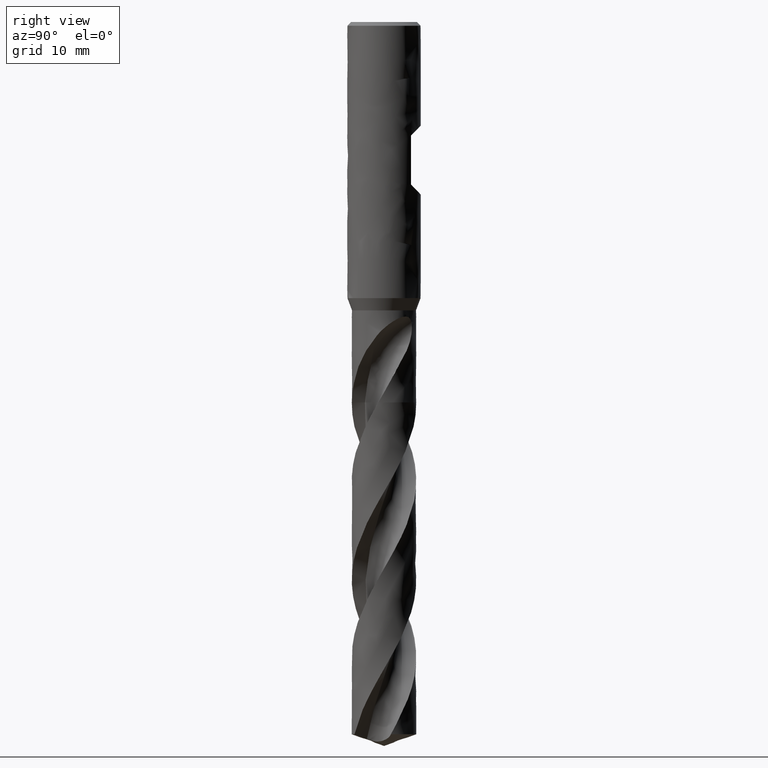
[diagram: clean part render]
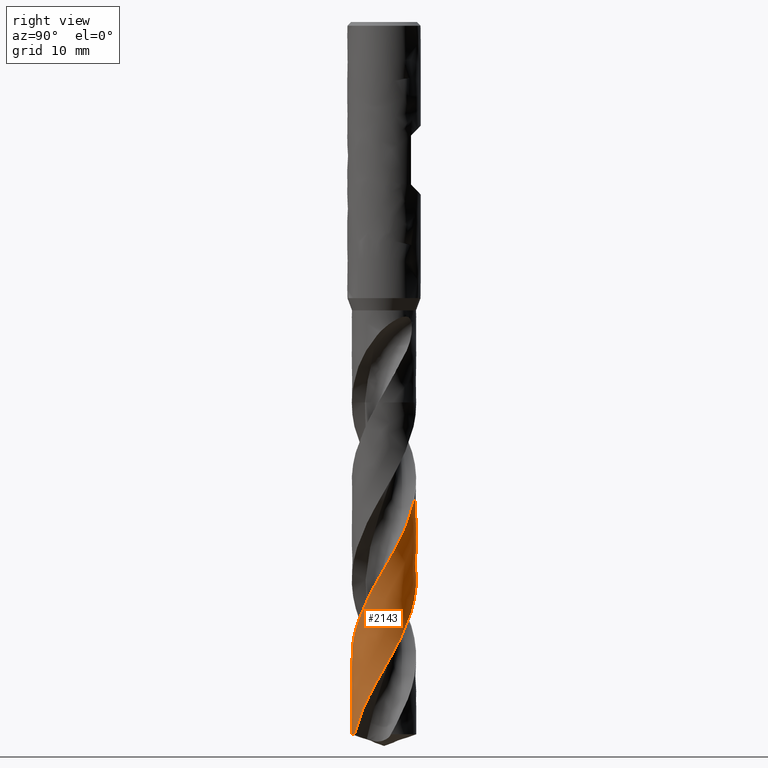
[diagram: same view with one face highlighted and labeled with its STEP entity id]
A machine part, right view. The second image highlights one B-rep face of the part: STEP entity #2143.
In plain terms, the highlighted face is a freeform B-spline surface patch.
Its self-contained STEP definition (entity closure, byte-faithful):
#1851 = EDGE_CURVE('', #1852, #1854, #1856, .T.);
#1852 = VERTEX_POINT('', #1853);
#1853 = CARTESIAN_POINT('', (-5.25, 4.11787486213298E-15, -62.));
#1854 = VERTEX_POINT('', #1855);
#1855 = CARTESIAN_POINT('', (-5.16869283402966, 0.920388172159186, -62.));
#1856 = CIRCLE('', #1857, 5.25);
#1857 = AXIS2_PLACEMENT_3D('', #1858, #1859, #1860);
#1858 = CARTESIAN_POINT('', (2.32462766312588E-31, 3.7964050773568E-15, -62.));
#1859 = DIRECTION('', (3.74939945665464E-33, 6.12323399573677E-17, -1.));
#1860 = DIRECTION('', (-1., 6.12323399573677E-17, 0.));
#2047 = EDGE_CURVE('', #1852, #2048, #2050, .T.);
#2048 = VERTEX_POINT('', #2049);
#2049 = CARTESIAN_POINT('', (-5.25, 5.01069194427912E-15, -76.5808094671502));
#2050 = LINE('', #2051, #2052);
#2051 = CARTESIAN_POINT('', (-5.25, 4.11787486213298E-15, -62.));
#2052 = VECTOR('', #2053, 14.5808094671502);
#2053 = DIRECTION('', (0., 8.92817082146143E-16, -14.5808094671502));
#2143 = ADVANCED_FACE('', (#2144), #2539, .T.);
#2144 = FACE_OUTER_BOUND('', #2145, .T.);
#2145 = EDGE_LOOP('', (#2146, #2147, #2171, #2360, #2372, #2381, #2538));
#2146 = ORIENTED_EDGE('', *, *, #1851, .T.);
#2147 = ORIENTED_EDGE('', *, *, #2148, .F.);
#2148 = EDGE_CURVE('', #2149, #1854, #2151, .T.);
#2149 = VERTEX_POINT('', #2150);
#2150 = CARTESIAN_POINT('', (-4.2160817945425, 3.12844279182588, -66.2069655611149));
#2151 = B_SPLINE_CURVE_WITH_KNOTS('', 3, (#2152, #2153, #2154, #2155, #2156, #2157, #2158, #2159, #2160, #2161, #2162, #2163, #2164, #2165, #2166, #2167, #2168, #2169, #2170), .UNSPECIFIED., .F., .U., (4, 3, 3, 3, 3, 3, 4), (0., 0.996962139515723, 1.99364170083914, 2.99004708487693, 3.98615731582775, 4.28158842762479, 4.85609640100197), .UNSPECIFIED.);
#2152 = CARTESIAN_POINT('', (-4.21608179454249, 3.12844279182589, -66.2069655611149));
#2153 = CARTESIAN_POINT('', (-4.31498788157669, 2.99515086972207, -65.9190629632584));
#2154 = CARTESIAN_POINT('', (-4.40760196109266, 2.85711449780675, -65.6310878701483));
#2155 = CARTESIAN_POINT('', (-4.49345220451459, 2.71502988671266, -65.3432011643113));
#2156 = CARTESIAN_POINT('', (-4.57927811460868, 2.57298554797291, -65.0553960568637));
#2157 = CARTESIAN_POINT('', (-4.65839128829379, 2.42681640480214, -64.7675174718451));
#2158 = CARTESIAN_POINT('', (-4.73038496939341, 2.27726986572447, -64.4797203151252));
#2159 = CARTESIAN_POINT('', (-4.80235884570036, 2.12776446551004, -64.1920023287287));
#2160 = CARTESIAN_POINT('', (-4.86726117376034, 1.97479523071185, -63.9042077677993));
#2161 = CARTESIAN_POINT('', (-4.92477063174782, 1.81910258772656, -63.6165166027939));
#2162 = CARTESIAN_POINT('', (-4.98226305440579, 1.66345606368536, -63.3289106570544));
#2163 = CARTESIAN_POINT('', (-5.03239520643846, 1.50499822601956, -63.0412474931458));
#2164 = CARTESIAN_POINT('', (-5.07488446156996, 1.34463664300591, -62.7536240848049));
#2165 = CARTESIAN_POINT('', (-5.08748612702113, 1.29707584171383, -62.6683193658444));
#2166 = CARTESIAN_POINT('', (-5.09941763542269, 1.24934360747475, -62.5830084273118));
#2167 = CARTESIAN_POINT('', (-5.110674765344, 1.20145888105921, -62.4976968989545));
#2168 = CARTESIAN_POINT('', (-5.13256586157215, 1.10834019440032, -62.3317964527754));
#2169 = CARTESIAN_POINT('', (-5.15191339942163, 1.01461770057016, -62.1658689678368));
#2170 = CARTESIAN_POINT('', (-5.16869283402966, 0.920388172159186, -62.));
#2171 = ORIENTED_EDGE('', *, *, #2172, .T.);
#2172 = EDGE_CURVE('', #2149, #2173, #2175, .T.);
#2173 = VERTEX_POINT('', #2174);
#2174 = CARTESIAN_POINT('', (-4.84328830628847, -2.02609436655092, -114.411148209227));
#2175 = B_SPLINE_CURVE_WITH_KNOTS('', 3, (#2176, #2177, #2178, #2179, #2180, #2181, #2182, #2183, #2184, #2185, #2186, #2187, #2188, #2189, #2190, #2191, #2192, #2193, #2194, #2195, #2196, #2197, #2198, #2199, #2200, #2201, #2202, #2203, #2204, #2205, #2206, #2207, #2208, #2209, #2210, #2211, #2212, #2213, #2214, #2215, #2216, #2217, #2218, #2219, #2220, #2221, #2222, #2223, #2224, #2225, #2226, #2227, #2228, #2229, #2230, #2231, #2232, #2233, #2234, #2235, #2236, #2237, #2238, #2239, #2240, #2241, #2242, #2243, #2244, #2245, #2246, #2247, #2248, #2249, #2250, #2251, #2252, #2253, #2254, #2255, #2256, #2257, #2258, #2259, #2260, #2261, #2262, #2263, #2264, #2265, #2266, #2267, #2268, #2269, #2270, #2271, #2272, #2273, #2274, #2275, #2276, #2277, #2278, #2279, #2280, #2281, #2282, #2283, #2284, #2285, #2286, #2287, #2288, #2289, #2290, #2291, #2292, #2293, #2294, #2295, #2296, #2297, #2298, #2299, #2300, #2301, #2302, #2303, #2304, #2305, #2306, #2307, #2308, #2309, #2310, #2311, #2312, #2313, #2314, #2315, #2316, #2317, #2318, #2319, #2320, #2321, #2322, #2323, #2324, #2325, #2326, #2327, #2328, #2329, #2330, #2331, #2332, #2333, #2334, #2335, #2336, #2337, #2338, #2339, #2340, #2341, #2342, #2343, #2344, #2345, #2346, #2347, #2348, #2349, #2350, #2351, #2352, #2353, #2354, #2355, #2356, #2357, #2358, #2359), .UNSPECIFIED., .F., .U., (4, 3, 3, 3, 3, 3, 3, 3, 3, 3, 3, 3, 3, 3, 3, 3, 3, 3, 3, 3, 3, 3, 3, 3, 3, 3, 3, 3, 3, 3, 3, 3, 3, 3, 3, 3, 3, 3, 3, 3, 3, 3, 3, 3, 3, 3, 3, 3, 3, 3, 3, 3, 3, 3, 3, 3, 3, 3, 3, 3, 3, 4), (0., 0.997826416070521, 1.99537229100751, 2.99264038705192, 3.98963191990306, 4.98634677811487, 5.9827835936235, 6.97893963658797, 7.97481087490306, 8.97039206098137, 9.63444262651333, 9.76576934265647, 9.85333803387585, 10.8531826874628, 11.8526969012914, 12.851893886791, 13.850784705534, 14.8493785045458, 15.8476827469499, 16.8457035347478, 17.8434455783771, 18.8409122470991, 19.8381056229899, 20.8350265308819, 21.8316745456524, 22.8280479773665, 23.8241438342878, 24.8199577912903, 25.8154842414145, 26.2584016873673, 26.3897286406995, 27.389562113575, 28.3890709331698, 29.3882664865803, 30.3871597176696, 31.3857598368594, 32.3840744096357, 33.3821094964198, 34.3798697618103, 35.3773585545626, 36.3745779617646, 37.371528839556, 38.3682108222731, 39.3646223345982, 40.3607606307431, 41.3566217007286, 42.3522001841751, 43.0162519629284, 43.074638212273, 44.0744329911501, 45.0739069317469, 46.0730727259813, 47.0719411035937, 48.07052102078, 49.0688198351982, 50.0668434448146, 51.0645963924434, 52.0620819464989, 53.0593021437864, 54.0562578422224, 55.0529486841756, 55.5193598382683), .UNSPECIFIED.);
#2176 = CARTESIAN_POINT('', (-4.2160817945425, 3.12844279182588, -66.2069655611149));
#2177 = CARTESIAN_POINT('', (-4.11708996482183, 3.26185026604413, -66.4951177446432));
#2178 = CARTESIAN_POINT('', (-4.01174220257427, 3.39057651159989, -66.7833613213697));
#2179 = CARTESIAN_POINT('', (-3.900576118705, 3.51397295695175, -67.0715349434668));
#2180 = CARTESIAN_POINT('', (-3.78944128942939, 3.63733470911641, -67.3596275449042));
#2181 = CARTESIAN_POINT('', (-3.67242937839169, 3.75543857241008, -67.6478118540161));
#2182 = CARTESIAN_POINT('', (-3.55013575166505, 3.86769131973451, -67.935926429764));
#2183 = CARTESIAN_POINT('', (-3.42787617909978, 3.97991280890367, -68.223960776472));
#2184 = CARTESIAN_POINT('', (-3.30027006904479, 4.08634873122968, -68.5120870680024));
#2185 = CARTESIAN_POINT('', (-3.1679640903861, 4.18646671096573, -68.800143258256));
#2186 = CARTESIAN_POINT('', (-3.0356948029282, 4.28655692590284, -69.0881195645344));
#2187 = CARTESIAN_POINT('', (-2.89865595550054, 4.3803874565236, -69.3761878510616));
#2188 = CARTESIAN_POINT('', (-2.75754018003997, 4.46749058817869, -69.6641860296679));
#2189 = CARTESIAN_POINT('', (-2.61646356555017, 4.55456954788574, -69.9521042860387));
#2190 = CARTESIAN_POINT('', (-2.47123557740283, 4.63497221739177, -70.2401144488013));
#2191 = CARTESIAN_POINT('', (-2.32258873070124, 4.7082992245629, -70.5280546226502));
#2192 = CARTESIAN_POINT('', (-2.17398335039371, 4.7816057764964, -70.8159144729605));
#2193 = CARTESIAN_POINT('', (-2.02187999020734, 4.8478805743273, -71.103865865482));
#2194 = CARTESIAN_POINT('', (-1.8670452696576, 4.90679548799919, -71.3917476907034));
#2195 = CARTESIAN_POINT('', (-1.71225417790374, 4.96569380082903, -71.6795483975726));
#2196 = CARTESIAN_POINT('', (-1.55464773639376, 5.01726888298646, -71.9674400297184));
#2197 = CARTESIAN_POINT('', (-1.3950205281438, 5.0612664152421, -72.2552627386152));
#2198 = CARTESIAN_POINT('', (-1.23543895789543, 5.10525136844264, -72.5430031579488));
#2199 = CARTESIAN_POINT('', (-1.07374813054914, 5.14168778997745, -72.8308339146304));
#2200 = CARTESIAN_POINT('', (-0.910763075180295, 5.17039753025708, -73.1185961865298));
#2201 = CARTESIAN_POINT('', (-0.74782548998435, 5.19909890868825, -73.4062746462983));
#2202 = CARTESIAN_POINT('', (-0.583502411125033, 5.22009433427144, -73.6940432396484));
#2203 = CARTESIAN_POINT('', (-0.418620734896973, 5.23328354671473, -73.9817434299985));
#2204 = CARTESIAN_POINT('', (-0.308645002253418, 5.24208072378513, -74.1736388542764));
#2205 = CARTESIAN_POINT('', (-0.198386641813671, 5.24740994781605, -74.3655627607601));
#2206 = CARTESIAN_POINT('', (-0.0880916096951311, 5.24926088781091, -74.5574676483081));
#2207 = CARTESIAN_POINT('', (-0.0662789870924732, 5.24962694106637, -74.5954199368861));
#2208 = CARTESIAN_POINT('', (-0.0444643105177051, 5.24985702855171, -74.633372599933));
#2209 = CARTESIAN_POINT('', (-0.022649492477796, 5.24995114267652, -74.6713252752606));
#2210 = CARTESIAN_POINT('', (-0.00810336568009593, 5.25001389800139, -74.6966321298316));
#2211 = CARTESIAN_POINT('', (0.00644290206478426, 5.25001619749243, -74.7219391255088));
#2212 = CARTESIAN_POINT('', (0.0209887447066012, 5.24995804484147, -74.7472461544025));
#2213 = CARTESIAN_POINT('', (0.187070740392739, 5.24929406761003, -75.0361975728287));
#2214 = CARTESIAN_POINT('', (0.353147656369036, 5.24074019356305, -75.3252409934681));
#2215 = CARTESIAN_POINT('', (0.518381553905356, 5.22434498904606, -75.61421425995));
#2216 = CARTESIAN_POINT('', (0.683560843109312, 5.20795520299823, -75.9030920233394));
#2217 = CARTESIAN_POINT('', (0.847987776535183, 5.18372037435169, -76.192061884513));
#2218 = CARTESIAN_POINT('', (1.01083503098467, 5.15176790433481, -76.4809615145362));
#2219 = CARTESIAN_POINT('', (1.17363060056393, 5.11982557547303, -76.7697694528701));
#2220 = CARTESIAN_POINT('', (1.33493566421366, 5.08015322852734, -77.0586694087725));
#2221 = CARTESIAN_POINT('', (1.49394020017261, 5.0329556602766, -77.3474992586635));
#2222 = CARTESIAN_POINT('', (1.65289601510481, 4.98577255396539, -77.6362406073885));
#2223 = CARTESIAN_POINT('', (1.80963895416207, 4.93104323231619, -77.9250736363366));
#2224 = CARTESIAN_POINT('', (1.96338257272932, 4.86904804588162, -78.2138369645039));
#2225 = CARTESIAN_POINT('', (2.11708047570141, 4.80707129368758, -78.5025144290267));
#2226 = CARTESIAN_POINT('', (2.26786530078395, 4.73779890039162, -78.7912829470862));
#2227 = CARTESIAN_POINT('', (2.41498026480323, 4.661584528957, -79.0799824425176));
#2228 = CARTESIAN_POINT('', (2.56205257072673, 4.5853922569735, -79.3685982253857));
#2229 = CARTESIAN_POINT('', (2.7055394653251, 4.50221935139632, -79.6573044117113));
#2230 = CARTESIAN_POINT('', (2.84472078987056, 4.4124895045403, -79.9459420895726));
#2231 = CARTESIAN_POINT('', (2.98386259581453, 4.32278513522642, -80.2344978127794));
#2232 = CARTESIAN_POINT('', (3.11877981046854, 4.22647693079333, -80.5231436713739));
#2233 = CARTESIAN_POINT('', (3.2487963910487, 4.12405407451321, -80.8117211630749));
#2234 = CARTESIAN_POINT('', (3.37877665839358, 4.02165982462515, -81.1002180559607));
#2235 = CARTESIAN_POINT('', (3.50393207792608, 3.91309684682083, -81.3888051244838));
#2236 = CARTESIAN_POINT('', (3.62363736794946, 3.79891461151739, -81.6773237030806));
#2237 = CARTESIAN_POINT('', (3.74330961954038, 3.68476389029381, -81.9657626510981));
#2238 = CARTESIAN_POINT('', (3.85760117226234, 3.56493373636408, -82.2542919828146));
#2239 = CARTESIAN_POINT('', (3.96594315979828, 3.44002832157662, -82.5427525742022));
#2240 = CARTESIAN_POINT('', (4.07425546304556, 3.31515712924042, -82.8311341311577));
#2241 = CARTESIAN_POINT('', (4.17668063104702, 3.18514533347758, -83.1196063178347));
#2242 = CARTESIAN_POINT('', (4.272710952783, 3.05064601584127, -83.4080095129712));
#2243 = CARTESIAN_POINT('', (4.36871503568685, 2.91618344810804, -83.6963339062991));
#2244 = CARTESIAN_POINT('', (4.45837944643586, 2.77716351391643, -83.9847490941912));
#2245 = CARTESIAN_POINT('', (4.54126155491158, 2.63428234817039, -84.2730951543572));
#2246 = CARTESIAN_POINT('', (4.62412097557213, 2.49144029414025, -84.5613622838319));
#2247 = CARTESIAN_POINT('', (4.70024600395417, 2.34466298474578, -84.849720183142));
#2248 = CARTESIAN_POINT('', (4.76926231741443, 2.19468379218756, -85.1380090386381));
#2249 = CARTESIAN_POINT('', (4.83825961642826, 2.04474591987929, -85.4262184686662));
#2250 = CARTESIAN_POINT('', (4.90018893545533, 1.89152790518994, -85.7145183566269));
#2251 = CARTESIAN_POINT('', (4.95474690909239, 1.73579464996281, -86.0027495990515));
#2252 = CARTESIAN_POINT('', (5.00928968369086, 1.58010477970027, -86.2909005445464));
#2253 = CARTESIAN_POINT('', (5.05649469650844, 1.42181680224163, -86.5791412979194));
#2254 = CARTESIAN_POINT('', (5.09613177813141, 1.26172140344823, -86.8673141321673));
#2255 = CARTESIAN_POINT('', (5.13575764226962, 1.10167131242277, -87.1554054121169));
#2256 = CARTESIAN_POINT('', (5.16784172529851, 0.939726347781722, -87.4435857901692));
#2257 = CARTESIAN_POINT('', (5.19222915850842, 0.776695799869749, -87.7316988233314));
#2258 = CARTESIAN_POINT('', (5.21660955068949, 0.613712321396365, -88.0197286738086));
#2259 = CARTESIAN_POINT('', (5.23331135756969, 0.449552887219029, -88.307847323437));
#2260 = CARTESIAN_POINT('', (5.24225657795836, 0.285036788596156, -88.5958987925709));
#2261 = CARTESIAN_POINT('', (5.24623637595121, 0.211842299176946, -88.7240551273382));
#2262 = CARTESIAN_POINT('', (5.24868289645099, 0.13856430471541, -88.8522205733626));
#2263 = CARTESIAN_POINT('', (5.24959419660672, 0.0652745812172884, -88.9803810359709));
#2264 = CARTESIAN_POINT('', (5.2498644010751, 0.0435438587417685, -89.0183811717655));
#2265 = CARTESIAN_POINT('', (5.24999966860374, 0.0218116705636013, -89.056381668433));
#2266 = CARTESIAN_POINT('', (5.24999999939181, 7.99124180517558E-5, -89.0943821726134));
#2267 = CARTESIAN_POINT('', (5.25000251778557, -0.16537080936484, -89.38369198375));
#2268 = CARTESIAN_POINT('', (5.24217529757717, -0.330846529524701, -89.6730930248121));
#2269 = CARTESIAN_POINT('', (5.22656286652666, -0.495520536652695, -89.9624247229335));
#2270 = CARTESIAN_POINT('', (5.21095550494732, -0.660141072919653, -90.251662472925));
#2271 = CARTESIAN_POINT('', (5.18755960491977, -0.824048626088918, -90.540990996832));
#2272 = CARTESIAN_POINT('', (5.15649751435526, -0.986424545744888, -90.8302507312612));
#2273 = CARTESIAN_POINT('', (5.12544515927522, -1.14874957351902, -91.1194198058668));
#2274 = CARTESIAN_POINT('', (5.08671442641611, -1.30963249845483, -91.4086789087569));
#2275 = CARTESIAN_POINT('', (5.04050451453364, -1.46826913029183, -91.6978699877849));
#2276 = CARTESIAN_POINT('', (4.99430858418641, -1.6268577641222, -91.986973567506));
#2277 = CARTESIAN_POINT('', (4.94061225704129, -1.78328974432446, -92.2761665404598));
#2278 = CARTESIAN_POINT('', (4.87968964888129, -1.9367831397969, -92.565291966408));
#2279 = CARTESIAN_POINT('', (4.8187849176483, -2.09023149467914, -92.8543325523552));
#2280 = CARTESIAN_POINT('', (4.75062405729675, -2.24082892888107, -93.1434623439017));
#2281 = CARTESIAN_POINT('', (4.67555304784868, -2.38782405062709, -93.4325246588974));
#2282 = CARTESIAN_POINT('', (4.60050350470838, -2.53477713960243, -93.7215043174766));
#2283 = CARTESIAN_POINT('', (4.5185060954584, -2.67821167795792, -94.0105733004345));
#2284 = CARTESIAN_POINT('', (4.42997484933108, -2.81741421063608, -94.2995746165433));
#2285 = CARTESIAN_POINT('', (4.34146838822026, -2.95657777247376, -94.5884950244677));
#2286 = CARTESIAN_POINT('', (4.24638337193078, -3.09158788498576, -94.8775050346652));
#2287 = CARTESIAN_POINT('', (4.14519753061624, -3.22177550927637, -95.1664470716137));
#2288 = CARTESIAN_POINT('', (4.04403955208358, -3.35192728478288, -95.4553095447729));
#2289 = CARTESIAN_POINT('', (3.93672981944304, -3.477329183019, -95.7442619184634));
#2290 = CARTESIAN_POINT('', (3.82380508134253, -3.59736218636643, -96.0331460324613));
#2291 = CARTESIAN_POINT('', (3.71091106803395, -3.71736253089068, -96.3219515462831));
#2292 = CARTESIAN_POINT('', (3.59234547215081, -3.83206036234479, -96.6108471492141));
#2293 = CARTESIAN_POINT('', (3.46869921469749, -3.94089149279157, -96.8996743532725));
#2294 = CARTESIAN_POINT('', (3.34508634961444, -4.04969323189663, -97.188423555577));
#2295 = CARTESIAN_POINT('', (3.2163308173872, -4.15268846132155, -97.4772628046978));
#2296 = CARTESIAN_POINT('', (3.08307283861474, -4.24937193850997, -97.7660337814424));
#2297 = CARTESIAN_POINT('', (2.94985074330609, -4.34602938094921, -98.0547269984688));
#2298 = CARTESIAN_POINT('', (2.81205856712287, -4.43642928075001, -98.3435098769476));
#2299 = CARTESIAN_POINT('', (2.67038103151095, -4.52012888605474, -98.6322249846041));
#2300 = CARTESIAN_POINT('', (2.52874170880629, -4.60380591611321, -98.9208622207505));
#2301 = CARTESIAN_POINT('', (2.38314322863226, -4.68083103888686, -99.2095883632542));
#2302 = CARTESIAN_POINT('', (2.23430979614357, -4.75082726847197, -99.4982475643953));
#2303 = CARTESIAN_POINT('', (2.08551675270329, -4.8208045031239, -99.7868284318565));
#2304 = CARTESIAN_POINT('', (1.93340882994126, -4.8837950297363, -100.075497460823));
#2305 = CARTESIAN_POINT('', (1.77874296120795, -4.93949121650734, -100.36410013586));
#2306 = CARTESIAN_POINT('', (1.6241195018781, -4.99517213137595, -100.652623676002));
#2307 = CARTESIAN_POINT('', (1.46685379449264, -5.04359358149123, -100.941235119503));
#2308 = CARTESIAN_POINT('', (1.30772726761584, -5.08452056673332, -101.229780336055));
#2309 = CARTESIAN_POINT('', (1.14864502579068, -5.12543616195961, -101.518245250221));
#2310 = CARTESIAN_POINT('', (0.987615371475328, -5.15888405216453, -101.8067981769));
#2311 = CARTESIAN_POINT('', (0.825436095620085, -5.18470396956738, -102.095284687242));
#2312 = CARTESIAN_POINT('', (0.663302839919315, -5.21051656028449, -102.383689336363));
#2313 = CARTESIAN_POINT('', (0.499932753537205, -5.22871956462199, -102.672182307567));
#2314 = CARTESIAN_POINT('', (0.336132246449898, -5.23922848450965, -102.960608520937));
#2315 = CARTESIAN_POINT('', (0.226877155163202, -5.24623794389452, -103.152989074767));
#2316 = CARTESIAN_POINT('', (0.117398914776392, -5.2498285311275, -103.345397908009));
#2317 = CARTESIAN_POINT('', (0.00793620856777967, -5.24999400157691, -103.537788067721));
#2318 = CARTESIAN_POINT('', (-0.00168821691095993, -5.25000855044076, -103.554703826696));
#2319 = CARTESIAN_POINT('', (-0.0113126300522792, -5.24999663350282, -103.571619636156));
#2320 = CARTESIAN_POINT('', (-0.0209368658725634, -5.24995825199103, -103.588535465751));
#2321 = CARTESIAN_POINT('', (-0.185740408347153, -5.2493010144477, -103.878198841972));
#2322 = CARTESIAN_POINT('', (-0.350537128118763, -5.24087507591618, -104.167952166624));
#2323 = CARTESIAN_POINT('', (-0.514509996504061, -5.22472769276039, -104.457637636655));
#2324 = CARTESIAN_POINT('', (-0.678430245317613, -5.20858549136665, -104.747230145421));
#2325 = CARTESIAN_POINT('', (-0.84161511774812, -5.18471808130353, -105.036911781604));
#2326 = CARTESIAN_POINT('', (-1.00325458198268, -5.15324948394027, -105.326526440681));
#2327 = CARTESIAN_POINT('', (-1.16484421138823, -5.12179058861467, -105.616051809082));
#2328 = CARTESIAN_POINT('', (-1.32497826248485, -5.08271784998406, -105.905665555566));
#2329 = CARTESIAN_POINT('', (-1.48286145995798, -5.03623092109299, -106.19521291054));
#2330 = CARTESIAN_POINT('', (-1.64069766113927, -4.98975782973062, -106.484674077418));
#2331 = CARTESIAN_POINT('', (-1.79637197473341, -4.93584917587617, -106.774223378829));
#2332 = CARTESIAN_POINT('', (-1.94911250263481, -4.87477799002922, -107.063706406225));
#2333 = CARTESIAN_POINT('', (-2.10180892102312, -4.81372444076052, -107.353105834621));
#2334 = CARTESIAN_POINT('', (-2.25165746150021, -4.7454788798229, -107.642593520564));
#2335 = CARTESIAN_POINT('', (-2.39791739887158, -4.67038458247168, -107.932014733416));
#2336 = CARTESIAN_POINT('', (-2.54413616370127, -4.59531142435478, -108.221354473465));
#2337 = CARTESIAN_POINT('', (-2.68684764252051, -4.51335275175408, -108.510782798882));
#2338 = CARTESIAN_POINT('', (-2.82534915109802, -4.42491832403602, -108.80014429519));
#2339 = CARTESIAN_POINT('', (-2.96381247844197, -4.33650827537039, -109.089426022123));
#2340 = CARTESIAN_POINT('', (-3.09814166824221, -4.24157919120991, -109.37879671186));
#2341 = CARTESIAN_POINT('', (-3.22767803973565, -4.14060315314184, -109.668100212457));
#2342 = CARTESIAN_POINT('', (-3.35717928122671, -4.0396544995714, -109.957325254529));
#2343 = CARTESIAN_POINT('', (-3.48195770459513, -3.93260970792197, -110.246639538941));
#2344 = CARTESIAN_POINT('', (-3.60140375644321, -3.81999881977425, -110.535886415735));
#2345 = CARTESIAN_POINT('', (-3.7208177972542, -3.70741811086865, -110.825055775589));
#2346 = CARTESIAN_POINT('', (-3.83496370423324, -3.58921646455515, -111.114314417904));
#2347 = CARTESIAN_POINT('', (-3.94328543624007, -3.46597749103148, -111.403505713794));
#2348 = CARTESIAN_POINT('', (-4.05157835188502, -3.34277130223895, -111.692620077374));
#2349 = CARTESIAN_POINT('', (-4.1541058953384, -3.21446707315186, -111.981823392678));
#2350 = CARTESIAN_POINT('', (-4.2503693157891, -3.08169769435589, -112.270959834002));
#2351 = CARTESIAN_POINT('', (-4.34660720370022, -2.94896353079957, -112.560019585888));
#2352 = CARTESIAN_POINT('', (-4.43663471111888, -2.81169694098169, -112.849167503471));
#2353 = CARTESIAN_POINT('', (-4.52001381017823, -2.67057580978298, -113.13824946689));
#2354 = CARTESIAN_POINT('', (-4.60337075830857, -2.52949216956457, -113.427254631277));
#2355 = CARTESIAN_POINT('', (-4.68012781815205, -2.38447978059678, -113.716347075563));
#2356 = CARTESIAN_POINT('', (-4.74991170361824, -2.23625553276687, -114.005374307958));
#2357 = CARTESIAN_POINT('', (-4.7825677501949, -2.16689255722334, -114.140627406865));
#2358 = CARTESIAN_POINT('', (-4.81370432394595, -2.09681355816334, -114.275890586726));
#2359 = CARTESIAN_POINT('', (-4.84328830628847, -2.02609436655092, -114.411148209227));
#2360 = ORIENTED_EDGE('', *, *, #2361, .T.);
#2361 = EDGE_CURVE('', #2173, #2362, #2364, .T.);
#2362 = VERTEX_POINT('', #2363);
#2363 = CARTESIAN_POINT('', (-5.12901679958836, -1.12057425882463, -116.089156270102));
#2364 = B_SPLINE_CURVE_WITH_KNOTS('', 3, (#2365, #2366, #2367, #2368, #2369, #2370, #2371), .UNSPECIFIED., .F., .U., (4, 3, 4), (0., 0.996303851417017, 1.92851427668865), .UNSPECIFIED.);
#2365 = CARTESIAN_POINT('', (-4.84328830628849, -2.02609436655087, -114.411148209227));
#2366 = CARTESIAN_POINT('', (-4.90648284031596, -1.87503064872532, -114.700072882336));
#2367 = CARTESIAN_POINT('', (-4.96261334637962, -1.72098062366997, -114.989082592419));
#2368 = CARTESIAN_POINT('', (-5.01140923554839, -1.56469724670904, -115.278021565199));
#2369 = CARTESIAN_POINT('', (-5.05706602642482, -1.41846776752714, -115.548372746026));
#2370 = CARTESIAN_POINT('', (-5.09632360177884, -1.27021535532205, -115.818793437661));
#2371 = CARTESIAN_POINT('', (-5.12901679958836, -1.12057425882463, -116.089156270102));
#2372 = ORIENTED_EDGE('', *, *, #2373, .F.);
#2373 = EDGE_CURVE('', #2374, #2362, #2376, .T.);
#2374 = VERTEX_POINT('', #2375);
#2375 = CARTESIAN_POINT('', (2.1204246862142, -4.80273871349393, -116.089156270102));
#2376 = CIRCLE('', #2377, 5.25);
#2377 = AXIS2_PLACEMENT_3D('', #2378, #2379, #2380);
#2378 = CARTESIAN_POINT('', (4.35264619442618E-31, 7.10841068209489E-15, -116.089156270102));
#2379 = DIRECTION('', (3.74939945665464E-33, 6.12323399573677E-17, -1.));
#2380 = DIRECTION('', (-1., 6.12323399573677E-17, 0.));
#2381 = ORIENTED_EDGE('', *, *, #2382, .T.);
#2382 = EDGE_CURVE('', #2374, #2048, #2383, .T.);
#2383 = B_SPLINE_CURVE_WITH_KNOTS('', 3, (#2384, #2385, #2386, #2387, #2388, #2389, #2390, #2391, #2392, #2393, #2394, #2395, #2396, #2397, #2398, #2399, #2400, #2401, #2402, #2403, #2404, #2405, #2406, #2407, #2408, #2409, #2410, #2411, #2412, #2413, #2414, #2415, #2416, #2417, #2418, #2419, #2420, #2421, #2422, #2423, #2424, #2425, #2426, #2427, #2428, #2429, #2430, #2431, #2432, #2433, #2434, #2435, #2436, #2437, #2438, #2439, #2440, #2441, #2442, #2443, #2444, #2445, #2446, #2447, #2448, #2449, #2450, #2451, #2452, #2453, #2454, #2455, #2456, #2457, #2458, #2459, #2460, #2461, #2462, #2463, #2464, #2465, #2466, #2467, #2468, #2469, #2470, #2471, #2472, #2473, #2474, #2475, #2476, #2477, #2478, #2479, #2480, #2481, #2482, #2483, #2484, #2485, #2486, #2487, #2488, #2489, #2490, #2491, #2492, #2493, #2494, #2495, #2496, #2497, #2498, #2499, #2500, #2501, #2502, #2503, #2504, #2505, #2506, #2507, #2508, #2509, #2510, #2511, #2512, #2513, #2514, #2515, #2516, #2517, #2518, #2519, #2520, #2521, #2522, #2523, #2524, #2525, #2526, #2527, #2528, #2529, #2530, #2531, #2532, #2533, #2534, #2535, #2536, #2537), .UNSPECIFIED., .F., .U., (4, 3, 3, 3, 3, 3, 3, 3, 3, 3, 3, 3, 3, 3, 3, 3, 3, 3, 3, 3, 3, 3, 3, 3, 3, 3, 3, 3, 3, 3, 3, 3, 3, 3, 3, 3, 3, 3, 3, 3, 3, 3, 3, 3, 3, 3, 3, 3, 3, 3, 3, 4), (0., 0.998477348713195, 1.99667584010454, 2.99460009475846, 3.99225357836187, 4.9896385104983, 5.98675586552886, 6.98360539849684, 7.98018563728223, 8.97649384640644, 9.97252597870049, 10.9682766900226, 11.9637394164547, 12.1607013076222, 12.2482618662146, 12.3358531663341, 13.3356451585387, 14.3351170559944, 15.3342808895658, 16.3331467241186, 17.3317228560534, 18.3300159774712, 19.328031302441, 20.3257726611716, 21.3232425663162, 22.3204422547806, 23.3173717408881, 24.314029983067, 25.3104147561565, 26.3065225756159, 27.3023486283155, 28.2978866771799, 28.7408061828417, 28.8721332910739, 28.9305184868694, 29.9303375409891, 30.9298333096212, 31.9290180216797, 32.927901890814, 33.9264933307667, 34.9247991237504, 35.9228245499123, 36.9205734838836, 37.9180484692412, 38.9152508603582, 39.9121808400936, 40.9088373848903, 41.9052182416794, 42.9013198820743, 43.8971374323675, 44.8926645768683, 45.4903994573763), .UNSPECIFIED.);
#2384 = CARTESIAN_POINT('', (2.1204246862142, -4.80273871349393, -116.089156270102));
#2385 = CARTESIAN_POINT('', (2.27094122891036, -4.73628517274231, -115.799843810878));
#2386 = CARTESIAN_POINT('', (2.41838021777015, -4.66272618789983, -115.510459029823));
#2387 = CARTESIAN_POINT('', (2.56201089763472, -4.58242295738847, -115.221158803869));
#2388 = CARTESIAN_POINT('', (2.70560146395363, -4.50214215416985, -114.931939374426));
#2389 = CARTESIAN_POINT('', (2.84546193706467, -4.41507834604136, -114.642647590356));
#2390 = CARTESIAN_POINT('', (2.98089941282539, -4.32165925202545, -114.353440571939));
#2391 = CARTESIAN_POINT('', (3.11629967962236, -4.22826582319315, -114.06431300785));
#2392 = CARTESIAN_POINT('', (3.24735042408459, -4.12847161583611, -113.775112867013));
#2393 = CARTESIAN_POINT('', (3.3734027338485, -4.02276695761306, -113.485997572456));
#2394 = CARTESIAN_POINT('', (3.49942084130079, -3.91709098068642, -113.196960724786));
#2395 = CARTESIAN_POINT('', (3.62050931243066, -3.80545231814546, -112.907851422361));
#2396 = CARTESIAN_POINT('', (3.7360680301662, -3.68840015100992, -112.618826773342));
#2397 = CARTESIAN_POINT('', (3.85159564144676, -3.57137949234072, -112.329879924877));
#2398 = CARTESIAN_POINT('', (3.96165756794127, -3.44888631343455, -112.040860903106));
#2399 = CARTESIAN_POINT('', (4.06570744933346, -3.32152418874744, -111.751926211283));
#2400 = CARTESIAN_POINT('', (4.16972941636157, -3.19419623260211, -111.463069034476));
#2401 = CARTESIAN_POINT('', (4.26779827275815, -3.06193368555213, -111.174140053859));
#2402 = CARTESIAN_POINT('', (4.35942615891027, -2.92538947236241, -110.885295017625));
#2403 = CARTESIAN_POINT('', (4.45102943414841, -2.7888819344473, -110.596527564107));
#2404 = CARTESIAN_POINT('', (4.53624491953958, -2.64802086842659, -110.307688652803));
#2405 = CARTESIAN_POINT('', (4.61464775936951, -2.50350275752714, -110.018933357645));
#2406 = CARTESIAN_POINT('', (4.69302941904339, -2.35902368751125, -109.730256068363));
#2407 = CARTESIAN_POINT('', (4.76464507585112, -2.21081031260978, -109.441507534747));
#2408 = CARTESIAN_POINT('', (4.82913696625225, -2.05959611603247, -109.152842458198));
#2409 = CARTESIAN_POINT('', (4.89361125274513, -1.90842319535555, -108.864256176572));
#2410 = CARTESIAN_POINT('', (4.95100106530433, -1.75416810478822, -108.575598602808));
#2411 = CARTESIAN_POINT('', (5.00101925638169, -1.59759394005479, -108.287024627878));
#2412 = CARTESIAN_POINT('', (5.05102358742707, -1.44106316199496, -107.998530616746));
#2413 = CARTESIAN_POINT('', (5.09368757018592, -1.28212963379189, -107.709964937572));
#2414 = CARTESIAN_POINT('', (5.12879735844588, -1.12157819878924, -107.421483306355));
#2415 = CARTESIAN_POINT('', (5.1638972267139, -0.961072126319994, -107.133083183334));
#2416 = CARTESIAN_POINT('', (5.19146590735607, -0.798863580370768, -106.844610940584));
#2417 = CARTESIAN_POINT('', (5.2113644272787, -0.635752157759645, -106.556223104971));
#2418 = CARTESIAN_POINT('', (5.23125719227391, -0.472687909229924, -106.267918675112));
#2419 = CARTESIAN_POINT('', (5.24349471656205, -0.308635484331218, -105.979541954395));
#2420 = CARTESIAN_POINT('', (5.24801369580562, -0.144403076978365, -105.691249722925));
#2421 = CARTESIAN_POINT('', (5.24890781938688, -0.11190811289352, -105.63420832739));
#2422 = CARTESIAN_POINT('', (5.24950014462418, -0.0794040743700617, -105.577166571564));
#2423 = CARTESIAN_POINT('', (5.24979053337429, -0.0468972887669573, -105.52012564313));
#2424 = CARTESIAN_POINT('', (5.24991962738845, -0.0324462074507822, -105.494767765386));
#2425 = CARTESIAN_POINT('', (5.24998905268406, -0.0179944852879611, -105.469409878875));
#2426 = CARTESIAN_POINT('', (5.24999880470713, -0.0035426788908138, -105.444052087629));
#2427 = CARTESIAN_POINT('', (5.25000856015402, 0.0109142013729953, -105.418685393548));
#2428 = CARTESIAN_POINT('', (5.24995860047021, 0.0253712253071488, -105.393318688093));
#2429 = CARTESIAN_POINT('', (5.24984892574964, 0.0398278395767782, -105.367952077637));
#2430 = CARTESIAN_POINT('', (5.24859706732054, 0.204839743286883, -105.07841037693));
#2431 = CARTESIAN_POINT('', (5.23955627044715, 0.369848341879274, -104.788796044531));
#2432 = CARTESIAN_POINT('', (5.22276852892787, 0.534030798027079, -104.499266797663));
#2433 = CARTESIAN_POINT('', (5.2059861621945, 0.698160689298926, -104.209830246868));
#2434 = CARTESIAN_POINT('', (5.18145282152445, 0.861553299598572, -103.920320648836));
#2435 = CARTESIAN_POINT('', (5.14928753489348, 1.02339527211676, -103.630896468357));
#2436 = CARTESIAN_POINT('', (5.11713216246136, 1.18518736062435, -103.341561496127));
#2437 = CARTESIAN_POINT('', (5.07733245614646, 1.34551584470099, -103.052153307182));
#2438 = CARTESIAN_POINT('', (5.03008327073532, 1.50358315016787, -102.762830623219));
#2439 = CARTESIAN_POINT('', (4.98284817731831, 1.66160331231321, -102.473594229284));
#2440 = CARTESIAN_POINT('', (4.92814296341233, 1.81744753120499, -102.184284671324));
#2441 = CARTESIAN_POINT('', (4.86623664024373, 1.97034031607473, -101.8950605009));
#2442 = CARTESIAN_POINT('', (4.80434827186273, 2.12318875721128, -101.605920214615));
#2443 = CARTESIAN_POINT('', (4.73522991751606, 2.27316904061377, -101.316706978722));
#2444 = CARTESIAN_POINT('', (4.65922253557642, 2.41953412126733, -101.027578871634));
#2445 = CARTESIAN_POINT('', (4.58323669519759, 2.56585771999895, -100.738532707517));
#2446 = CARTESIAN_POINT('', (4.50032474336994, 2.70864701951186, -100.449413898728));
#2447 = CARTESIAN_POINT('', (4.41089675159054, 2.847189815732, -100.160379893158));
#2448 = CARTESIAN_POINT('', (4.32149364506571, 2.98569405945103, -99.8714263174912));
#2449 = CARTESIAN_POINT('', (4.2255293559313, 3.12002965260727, -99.5824004104063));
#2450 = CARTESIAN_POINT('', (4.12347951875922, 3.24952560512658, -99.2934589995819));
#2451 = CARTESIAN_POINT('', (4.02145769539555, 3.37898600957542, -99.0045969063688));
#2452 = CARTESIAN_POINT('', (3.91329750888119, 3.50368065106827, -98.7156627098857));
#2453 = CARTESIAN_POINT('', (3.79953579976923, 3.62298602071165, -98.4268128181216));
#2454 = CARTESIAN_POINT('', (3.68580504158823, 3.74225893117094, -98.1380415131959));
#2455 = CARTESIAN_POINT('', (3.56641301665547, 3.85621135241561, -97.8491981431382));
#2456 = CARTESIAN_POINT('', (3.4419525230211, 3.96427330405823, -97.5604391100227));
#2457 = CARTESIAN_POINT('', (3.31752574599434, 4.07230598149251, -97.2717583023322));
#2458 = CARTESIAN_POINT('', (3.18796500644001, 4.17451066999963, -96.9830051852403));
#2459 = CARTESIAN_POINT('', (3.0539129509994, 4.27037652762824, -96.6943367340077));
#2460 = CARTESIAN_POINT('', (2.91989721845555, 4.36621640933549, -96.4057465007056));
#2461 = CARTESIAN_POINT('', (2.78132020915989, 4.4557727157603, -96.1170835659478));
#2462 = CARTESIAN_POINT('', (2.63886834071623, 4.53859822856856, -95.8285056356461));
#2463 = CARTESIAN_POINT('', (2.49645523048464, 4.62140120626496, -95.5400062214406));
#2464 = CARTESIAN_POINT('', (2.35009333037283, 4.69752128480611, -95.2514338985843));
#2465 = CARTESIAN_POINT('', (2.20050717241991, 4.76657824693235, -94.9629467127183));
#2466 = CARTESIAN_POINT('', (2.05096205881768, 4.83561626079352, -94.6745386837033));
#2467 = CARTESIAN_POINT('', (1.89811488957066, 4.89763176163681, -94.3860577501484));
#2468 = CARTESIAN_POINT('', (1.74272245182556, 4.95231445446504, -94.0976618886018));
#2469 = CARTESIAN_POINT('', (1.58737320673141, 5.00698194777327, -93.8093461891401));
#2470 = CARTESIAN_POINT('', (1.42939716220186, 5.05434987573064, -93.5209577502079));
#2471 = CARTESIAN_POINT('', (1.26957712841133, 5.09418039678764, -93.2326541745735));
#2472 = CARTESIAN_POINT('', (1.10980230255132, 5.13399965107547, -92.9444321507178));
#2473 = CARTESIAN_POINT('', (0.948098520665903, 5.16630716648544, -92.6561376513816));
#2474 = CARTESIAN_POINT('', (0.78526797898985, 5.19093962603831, -92.3679277284782));
#2475 = CARTESIAN_POINT('', (0.62248452969541, 5.21556496161325, -92.079801159051));
#2476 = CARTESIAN_POINT('', (0.458486459194593, 5.23253303852, -91.7916024029735));
#2477 = CARTESIAN_POINT('', (0.294088288018779, 5.24175658332716, -91.5034879360311));
#2478 = CARTESIAN_POINT('', (0.220946777463784, 5.24586018128718, -91.3753044703988));
#2479 = CARTESIAN_POINT('', (0.147713191614694, 5.24843290679962, -91.2471153645568));
#2480 = CARTESIAN_POINT('', (0.0744596282796063, 5.24947195094483, -91.1189344112527));
#2481 = CARTESIAN_POINT('', (0.0527397028359982, 5.24978003099362, -91.0809283317898));
#2482 = CARTESIAN_POINT('', (0.0310175743123406, 5.24995331181152, -91.0429221795472));
#2483 = CARTESIAN_POINT('', (0.00929512882959063, 5.24999177147737, -91.0049163111341));
#2484 = CARTESIAN_POINT('', (-0.000362201250552612, 5.25000886981412, -90.9880197229235));
#2485 = CARTESIAN_POINT('', (-0.0100196233654844, 5.24999932122254, -90.9711231393383));
#2486 = CARTESIAN_POINT('', (-0.0196769716853363, 5.24996312527889, -90.9542265916711));
#2487 = CARTESIAN_POINT('', (-0.185054525547986, 5.24934328674535, -90.6648811492809));
#2488 = CARTESIAN_POINT('', (-0.350458106577861, 5.24090033850921, -90.375461928111));
#2489 = CARTESIAN_POINT('', (-0.515060448523653, 5.22467345719975, -90.0861287950233));
#2490 = CARTESIAN_POINT('', (-0.679609567290567, 5.20845182275493, -89.7968892160669));
#2491 = CARTESIAN_POINT('', (-0.843446479682586, 5.18444256193002, -89.5075758497836));
#2492 = CARTESIAN_POINT('', (-1.00575183149169, 5.15276268165452, -89.2183485241281));
#2493 = CARTESIAN_POINT('', (-1.16800667168464, 5.12109266058535, -88.9292112099202));
#2494 = CARTESIAN_POINT('', (-1.32881835479249, 5.08173970846846, -88.6400002429256));
#2495 = CARTESIAN_POINT('', (-1.4873822341329, 5.03489762453875, -88.3508751398827));
#2496 = CARTESIAN_POINT('', (-1.6458983717289, 4.98806964421706, -88.0618370890538));
#2497 = CARTESIAN_POINT('', (-1.80225404389119, 4.93373161321712, -87.7727256143215));
#2498 = CARTESIAN_POINT('', (-1.95566617123617, 4.87215248393177, -87.4836997496204));
#2499 = CARTESIAN_POINT('', (-2.10903338627028, 4.81059138230203, -87.1947584989566));
#2500 = CARTESIAN_POINT('', (-2.2595426936224, 4.74175970784283, -86.9057440877521));
#2501 = CARTESIAN_POINT('', (-2.40643947693383, 4.66599925459215, -86.6168150186151));
#2502 = CARTESIAN_POINT('', (-2.55329424043692, 4.5902604726106, -86.3279685976059));
#2503 = CARTESIAN_POINT('', (-2.69661956245227, 4.50755506546839, -86.0390492425739));
#2504 = CARTESIAN_POINT('', (-2.83569617142701, 4.41829460576751, -85.7502150223722));
#2505 = CARTESIAN_POINT('', (-2.97473372176148, 4.32905921420865, -85.4614619191318));
#2506 = CARTESIAN_POINT('', (-3.10960202419583, 4.23322297068078, -85.1726359883977));
#2507 = CARTESIAN_POINT('', (-3.23962394499166, 4.13126332918113, -84.8838951326837));
#2508 = CARTESIAN_POINT('', (-3.36960984461532, 4.02933193450154, -84.5952342695126));
#2509 = CARTESIAN_POINT('', (-3.49482397832101, 3.92122414785648, -84.3065004730296));
#2510 = CARTESIAN_POINT('', (-3.61463794087552, 3.80747850373225, -84.0178519322941));
#2511 = CARTESIAN_POINT('', (-3.73441900650795, 3.69376409037206, -83.7292826448305));
#2512 = CARTESIAN_POINT('', (-3.84886850012876, 3.57435264728617, -83.4406401394772));
#2513 = CARTESIAN_POINT('', (-3.95741255640178, 3.44983852642897, -83.152083166399));
#2514 = CARTESIAN_POINT('', (-4.06592694928972, 3.32535843332456, -82.8636050514075));
#2515 = CARTESIAN_POINT('', (-4.16859796078582, 3.19571099765443, -82.5750535036826));
#2516 = CARTESIAN_POINT('', (-4.2649109777858, 3.06154117260608, -82.2865876466475));
#2517 = CARTESIAN_POINT('', (-4.36119768441764, 2.92740799948288, -81.9982005914518));
#2518 = CARTESIAN_POINT('', (-4.45118178766712, 2.78868258725677, -81.709740052038));
#2519 = CARTESIAN_POINT('', (-4.53441203499171, 2.64605508198948, -81.4213652052117));
#2520 = CARTESIAN_POINT('', (-4.61761945417589, 2.50346669616282, -81.1330694529659));
#2521 = CARTESIAN_POINT('', (-4.6941215988769, 2.3569014306498, -80.8447003015451));
#2522 = CARTESIAN_POINT('', (-4.76353428927234, 2.20708882352448, -80.5564167184168));
#2523 = CARTESIAN_POINT('', (-4.83292777922566, 2.05731765649143, -80.2682128782321));
#2524 = CARTESIAN_POINT('', (-4.89527333500246, 1.9042197441941, -79.9799358217217));
#2525 = CARTESIAN_POINT('', (-4.95025712701326, 1.74855779900312, -79.6917441253544));
#2526 = CARTESIAN_POINT('', (-5.00522551088365, 1.5929394750507, -79.403633189116));
#2527 = CARTESIAN_POINT('', (-5.05286625041003, 1.43467356372453, -79.1154492661516));
#2528 = CARTESIAN_POINT('', (-5.09293865042935, 1.27454929405005, -78.8273504661312));
#2529 = CARTESIAN_POINT('', (-5.13299962172319, 1.11447069212495, -78.5393338324422));
#2530 = CARTESIAN_POINT('', (-5.16551858966246, 0.952446711813912, -78.2512444245122));
#2531 = CARTESIAN_POINT('', (-5.19033020469538, 0.789285985070296, -77.9632399410318));
#2532 = CARTESIAN_POINT('', (-5.21513458402862, 0.626172840155417, -77.6753194470033));
#2533 = CARTESIAN_POINT('', (-5.23224980816742, 0.461833432601947, -77.3873262969164));
#2534 = CARTESIAN_POINT('', (-5.24158741099234, 0.297088224152549, -77.0994179927183));
#2535 = CARTESIAN_POINT('', (-5.24719389891143, 0.198171827918936, -76.9265519520907));
#2536 = CARTESIAN_POINT('', (-5.25, 0.0990830152976084, -76.7536710020051));
#2537 = CARTESIAN_POINT('', (-5.25, 4.5144526099325E-15, -76.5808094671502));
#2538 = ORIENTED_EDGE('', *, *, #2047, .F.);
#2539 = (
   BOUNDED_SURFACE ()
   B_SPLINE_SURFACE (2, 1, ((#2540, #2541), (#2542, #2543), (#2544, #2545), (#2546, #2547), (#2548, #2549), (#2550, #2551), (#2552, #2553), (#2554, #2555), (#2556, #2557)), .UNSPECIFIED., .F., .F., .U.)
   B_SPLINE_SURFACE_WITH_KNOTS ((3, 2, 2, 2, 3), (2, 2), (0., 8.24668071567321, 16.4933614313464, 24.7400421470196, 31.7814693691046), (0.217110771209274, 1.), .UNSPECIFIED.)
   GEOMETRIC_REPRESENTATION_ITEM ()
   RATIONAL_B_SPLINE_SURFACE (((1., 1.), (0.707106781186548, 0.707106781186548), (1., 1.), (0.707106781186548, 0.707106781186548), (1., 1.), (0.707106781186548, 0.707106781186548), (1., 1.), (0.749913164432635, 0.749913164432635), (0.926899550822881, 0.926899550822881)))
   REPRESENTATION_ITEM ('')
   SURFACE ()
);
#2540 = CARTESIAN_POINT('', (-5.25, 4.11787486213298E-15, -62.));
#2541 = CARTESIAN_POINT('', (-5.25, 7.42988046687107E-15, -116.089156270102));
#2542 = CARTESIAN_POINT('', (-5.25, 5.25, -62.));
#2543 = CARTESIAN_POINT('', (-5.25, 5.25000000000001, -116.089156270102));
#2544 = CARTESIAN_POINT('', (1.97215226305253E-31, 5.25, -62.));
#2545 = CARTESIAN_POINT('', (4.43734259186819E-31, 5.25000000000001, -116.089156270102));
#2546 = CARTESIAN_POINT('', (5.25, 5.25, -62.));
#2547 = CARTESIAN_POINT('', (5.25, 5.25000000000001, -116.089156270102));
#2548 = CARTESIAN_POINT('', (5.25, 4.11787486213297E-15, -62.));
#2549 = CARTESIAN_POINT('', (5.25, 7.42988046687107E-15, -116.089156270102));
#2550 = CARTESIAN_POINT('', (5.25, -5.25, -62.));
#2551 = CARTESIAN_POINT('', (5.25, -5.24999999999999, -116.089156270102));
#2552 = CARTESIAN_POINT('', (6.42939569552361E-16, -5.25, -62.));
#2553 = CARTESIAN_POINT('', (6.42939569552361E-16, -5.24999999999999, -116.089156270102));
#2554 = CARTESIAN_POINT('', (-4.22683059702799, -5.25, -62.));
#2555 = CARTESIAN_POINT('', (-4.22683059702799, -5.24999999999999, -116.089156270102));
#2556 = CARTESIAN_POINT('', (-5.12901679958836, -1.12057425882464, -62.));
#2557 = CARTESIAN_POINT('', (-5.12901679958836, -1.12057425882463, -116.089156270102));